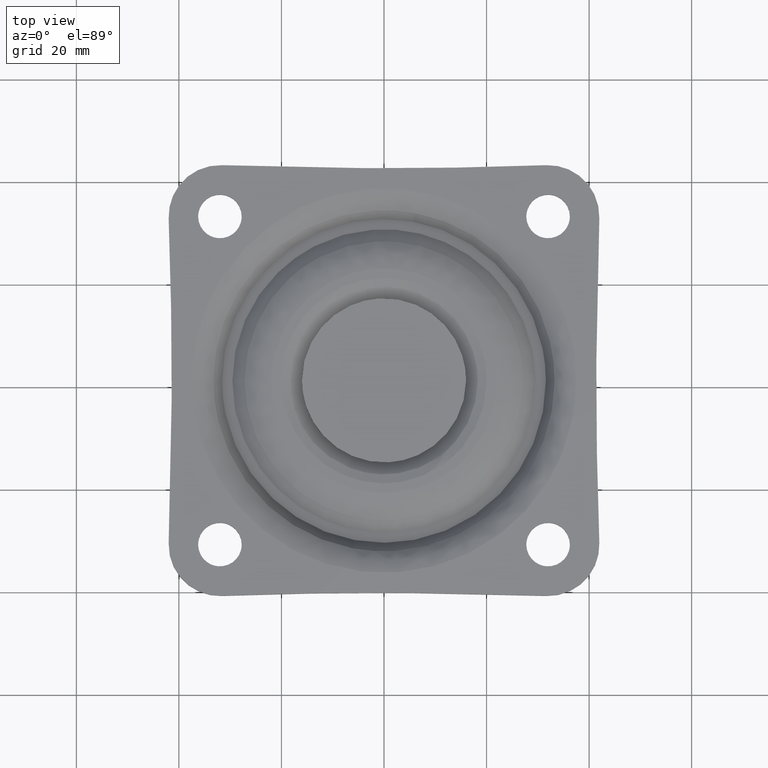
[diagram: clean part render]
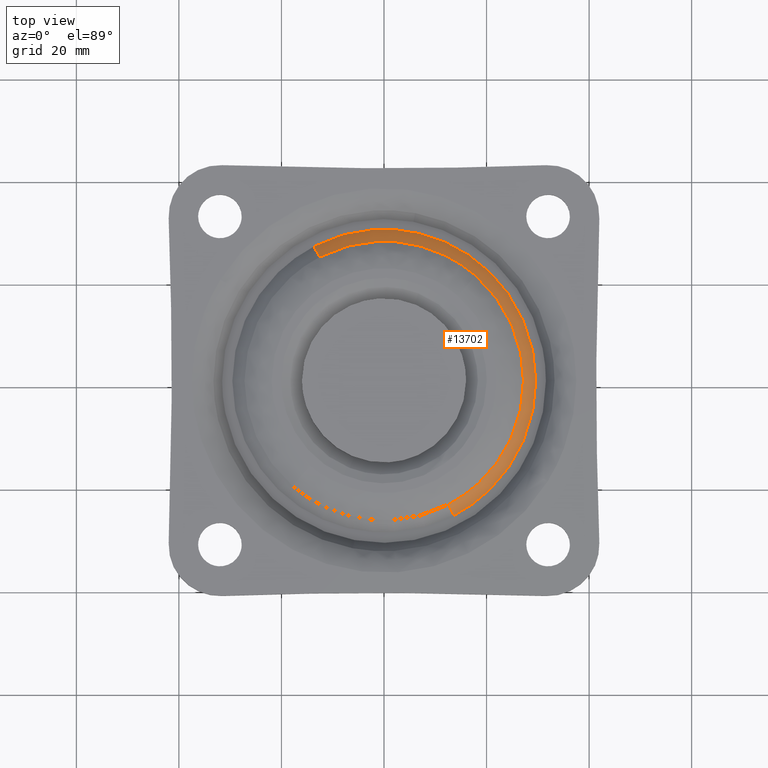
[diagram: same view with one face highlighted and labeled with its STEP entity id]
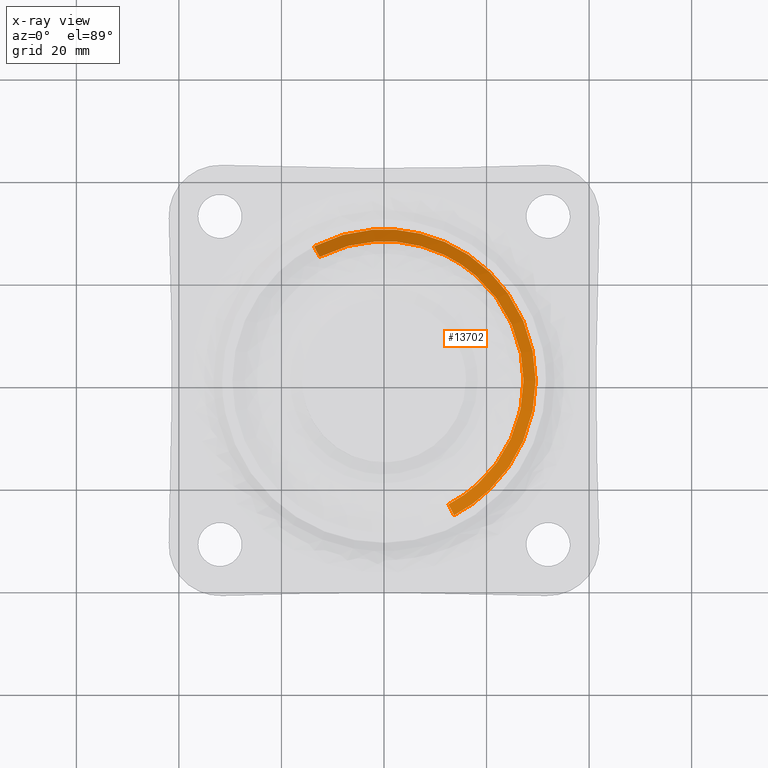
[diagram: x-ray of the same camera — body ghosted, the highlighted face saturated]
A machine part, top view. The second image highlights one B-rep face of the part: STEP entity #13702.
The next image is the same camera in x-ray: the body ghosted, the highlighted face saturated — about 0% of this face is hidden behind the body in this view.
In plain terms, the highlighted face is a freeform B-spline surface patch.
Its self-contained STEP definition (entity closure, byte-faithful):
#13476=CARTESIAN_POINT('',(17.861055625351732,20.517846676964279,-2.988921354814735));
#13477=VERTEX_POINT('',#13476);
#13491=CARTESIAN_POINT('',(-12.560914691928540,24.129292621602431,-2.988921354886151));
#13492=VERTEX_POINT('',#13491);
#13493=CARTESIAN_POINT('',(-12.560914691928536,24.129292621602431,-2.988921354886152));
#13494=CARTESIAN_POINT('',(-6.656514351230523,27.202928892214924,-2.988921354868759));
#13495=CARTESIAN_POINT('',(-6.091758E-011,27.202928892204330,-2.988921354852393));
#13496=CARTESIAN_POINT('',(10.181582765982080,27.202928892188144,-2.988921354827361));
#13497=CARTESIAN_POINT('',(17.861055625351732,20.517846676964279,-2.988921354814735));
#13505=(BOUNDED_CURVE()B_SPLINE_CURVE(2,(#13493,#13494,#13495,#13496,#13497),.UNSPECIFIED.,.F.,.U.)B_SPLINE_CURVE_WITH_KNOTS((3,2,3),(0.171447875879264,0.250000000000000,0.364567192700917),.UNSPECIFIED.)CURVE()GEOMETRIC_REPRESENTATION_ITEM()RATIONAL_B_SPLINE_CURVE((0.873773849652745,0.907970462086575,1.0,0.865776184637630,0.854573535032643))REPRESENTATION_ITEM(''));
#13506=EDGE_CURVE('',#13492,#13477,#13505,.T.);
#13585=CARTESIAN_POINT('',(12.560914691928540,-24.129292621602421,-2.988921354886154));
#13586=VERTEX_POINT('',#13585);
#13602=CARTESIAN_POINT('',(27.202928892281651,0.0,-2.988921354931100));
#13603=VERTEX_POINT('',#13602);
#13604=CARTESIAN_POINT('',(27.202928892281651,0.0,-2.988921354931100));
#13605=CARTESIAN_POINT('',(27.202928892291691,-16.507142475244777,-2.988921354919959));
#13606=CARTESIAN_POINT('',(12.560914691928536,-24.129292621602421,-2.988921354886154));
#13614=(BOUNDED_CURVE()B_SPLINE_CURVE(2,(#13604,#13605,#13606),.UNSPECIFIED.,.F.,.U.)B_SPLINE_CURVE_WITH_KNOTS((3,3),(0.500000000000000,0.671447875879264),.UNSPECIFIED.)CURVE()GEOMETRIC_REPRESENTATION_ITEM()RATIONAL_B_SPLINE_CURVE((1.0,0.799136319099972,0.873773849652745))REPRESENTATION_ITEM(''));
#13615=EDGE_CURVE('',#13603,#13586,#13614,.T.);
#13617=CARTESIAN_POINT('',(17.861055625351732,20.517846676964279,-2.988921354814735));
#13618=CARTESIAN_POINT('',(27.202928892238152,12.385623023574087,-2.988921354872917));
#13619=CARTESIAN_POINT('',(27.202928892281651,0.0,-2.988921354931100));
#13627=(BOUNDED_CURVE()B_SPLINE_CURVE(2,(#13617,#13618,#13619),.UNSPECIFIED.,.F.,.U.)B_SPLINE_CURVE_WITH_KNOTS((3,3),(0.364567192700917,0.500000000000000),.UNSPECIFIED.)CURVE()GEOMETRIC_REPRESENTATION_ITEM()RATIONAL_B_SPLINE_CURVE((0.854573535032643,0.841330596548918,1.0))REPRESENTATION_ITEM(''));
#13628=EDGE_CURVE('',#13477,#13603,#13627,.T.);
#13635=CARTESIAN_POINT('',(-12.533532166723750,24.076691280094529,-2.936842661822934));
#13636=CARTESIAN_POINT('',(11.543159113370779,36.610223446818281,-2.936842661822934));
#13637=CARTESIAN_POINT('',(24.076691280094529,12.533532166723750,-2.936842661822934));
#13638=CARTESIAN_POINT('',(36.610223446818281,-11.543159113370779,-2.936842661822934));
#13639=CARTESIAN_POINT('',(12.533532166723750,-24.076691280094529,-2.936842661822934));
#13640=CARTESIAN_POINT('',(-13.684282786461010,26.287262653210789,-5.125449734803377));
#13641=CARTESIAN_POINT('',(12.602979866749784,39.971545439671800,-5.125449734803377));
#13642=CARTESIAN_POINT('',(26.287262653210789,13.684282786461010,-5.125449734803377));
#13643=CARTESIAN_POINT('',(39.971545439671800,-12.602979866749784,-5.125449734803377));
#13644=CARTESIAN_POINT('',(13.684282786461010,-26.287262653210789,-5.125449734803377));
#13652=(BOUNDED_SURFACE()B_SPLINE_SURFACE(2,1,((#13635,#13640),(#13636,#13641),(#13637,#13642),(#13638,#13643),(#13639,#13644)),.UNSPECIFIED.,.F.,.F.,.U.)B_SPLINE_SURFACE_WITH_KNOTS((3,2,3),(2,2),(0.0,49.102176890486263,98.204353780972511),(0.0,3.316753488634152),.UNSPECIFIED.)GEOMETRIC_REPRESENTATION_ITEM()RATIONAL_B_SPLINE_SURFACE(((1.0,1.0),(0.707106781186548,0.707106781186548),(1.0,1.0),(0.707106781186548,0.707106781186548),(1.0,1.0)))REPRESENTATION_ITEM('')SURFACE());
#13653=ORIENTED_EDGE('',*,*,#13506,.T.);
#13654=ORIENTED_EDGE('',*,*,#13628,.T.);
#13655=ORIENTED_EDGE('',*,*,#13615,.T.);
#13656=CARTESIAN_POINT('',(13.656215698966490,-26.233346278596489,-5.072069075072497));
#13657=VERTEX_POINT('',#13656);
#13658=CARTESIAN_POINT('',(12.560914691928540,-24.129292621602421,-2.988921354886154));
#13659=CARTESIAN_POINT('',(13.656215698966490,-26.233346278596489,-5.072069075072497));
#13660=QUASI_UNIFORM_CURVE('',1,(#13658,#13659),.UNSPECIFIED.,.F.,.U.);
#13661=EDGE_CURVE('',#13586,#13657,#13660,.T.);
#13662=ORIENTED_EDGE('',*,*,#13661,.T.);
#13663=CARTESIAN_POINT('',(29.575001000000000,0.0,-5.072069074486780));
#13664=VERTEX_POINT('',#13663);
#13665=CARTESIAN_POINT('',(29.575001000000000,0.0,-5.072069074486780));
#13666=CARTESIAN_POINT('',(29.575001000153989,-17.946551165241754,-5.072069074779639));
#13667=CARTESIAN_POINT('',(13.656215698966495,-26.233346278596482,-5.072069075072497));
#13675=(BOUNDED_CURVE()B_SPLINE_CURVE(2,(#13665,#13666,#13667),.UNSPECIFIED.,.F.,.U.)B_SPLINE_CURVE_WITH_KNOTS((3,3),(0.500000000000000,0.671447875876090),.UNSPECIFIED.)CURVE()GEOMETRIC_REPRESENTATION_ITEM()RATIONAL_B_SPLINE_CURVE((1.0,0.799136319103690,0.873773849649982))REPRESENTATION_ITEM(''));
#13676=EDGE_CURVE('',#13664,#13657,#13675,.T.);
#13677=ORIENTED_EDGE('',*,*,#13676,.F.);
#13678=CARTESIAN_POINT('',(-13.656215698966500,26.233346278596489,-5.072069075072497));
#13679=VERTEX_POINT('',#13678);
#13680=CARTESIAN_POINT('',(-13.656215698966497,26.233346278596485,-5.072069075072497));
#13681=CARTESIAN_POINT('',(-7.236956703771273,29.575001000547665,-5.072069075029011));
#13682=CARTESIAN_POINT('',(-2.474201E-010,29.575001000475289,-5.072069074957349));
#13683=CARTESIAN_POINT('',(29.575000999906557,29.575001000179487,-5.072069074664491));
#13684=CARTESIAN_POINT('',(29.575001000000000,0.0,-5.072069074486780));
#13692=(BOUNDED_CURVE()B_SPLINE_CURVE(2,(#13680,#13681,#13682,#13683,#13684),.UNSPECIFIED.,.F.,.U.)B_SPLINE_CURVE_WITH_KNOTS((3,2,3),(0.171447875876090,0.250000000000000,0.500000000000000),.UNSPECIFIED.)CURVE()GEOMETRIC_REPRESENTATION_ITEM()RATIONAL_B_SPLINE_CURVE((0.873773849649982,0.907970462082857,1.0,0.707106781186547,1.0))REPRESENTATION_ITEM(''));
#13693=EDGE_CURVE('',#13679,#13664,#13692,.T.);
#13694=ORIENTED_EDGE('',*,*,#13693,.F.);
#13695=CARTESIAN_POINT('',(-12.560914691928540,24.129292621602431,-2.988921354886151));
#13696=CARTESIAN_POINT('',(-13.656215698966500,26.233346278596489,-5.072069075072497));
#13697=QUASI_UNIFORM_CURVE('',1,(#13695,#13696),.UNSPECIFIED.,.F.,.U.);
#13698=EDGE_CURVE('',#13492,#13679,#13697,.T.);
#13699=ORIENTED_EDGE('',*,*,#13698,.F.);
#13700=EDGE_LOOP('',(#13653,#13654,#13655,#13662,#13677,#13694,#13699));
#13701=FACE_OUTER_BOUND('',#13700,.T.);
#13702=ADVANCED_FACE('',(#13701),#13652,.T.);